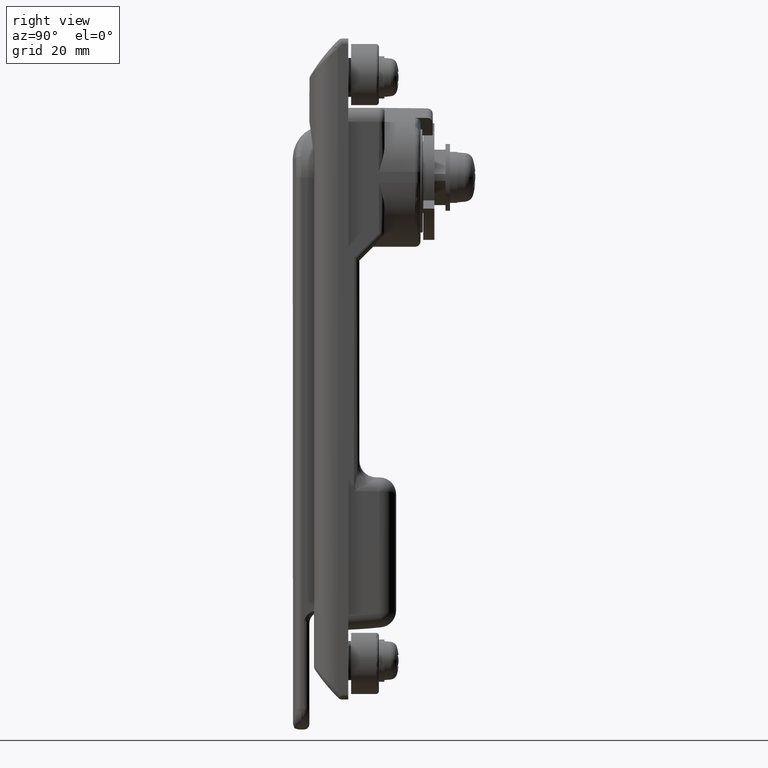
[diagram: clean part render]
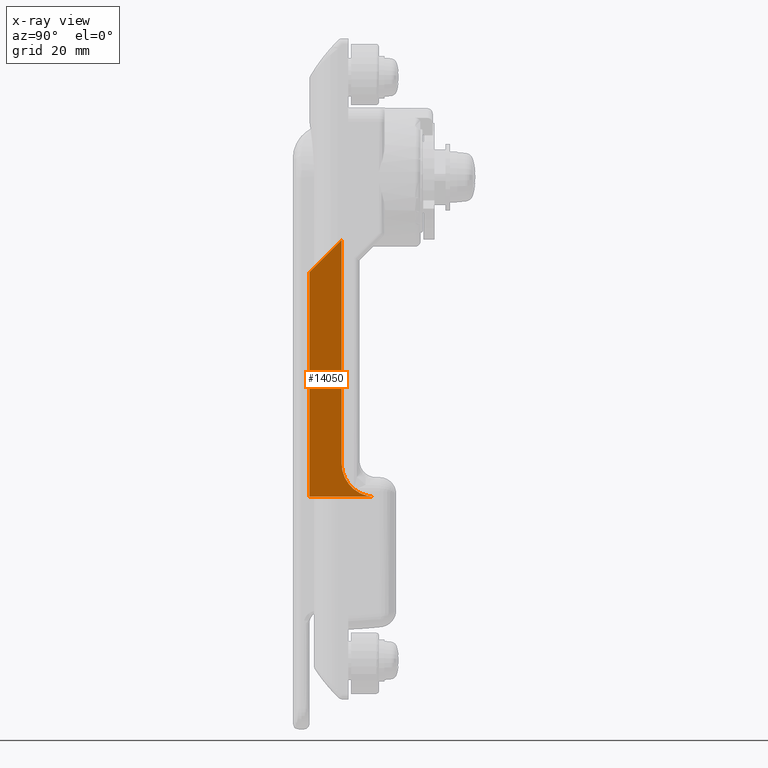
[diagram: x-ray — body ghosted, one internal face saturated and labeled with its STEP entity id]
A machine part, right view, then the same camera in x-ray: the body is ghosted and one INTERNAL B-rep face — a face not visible from any outside direction — is saturated and labeled: STEP entity #14050.
In plain terms, the highlighted planar face has unit normal (1, 0, 0).
Its self-contained STEP definition (entity closure, byte-faithful):
#13400 = VERTEX_POINT ( 'NONE', #21474 ) ;
#13409 = EDGE_CURVE ( 'NONE', #13410, #13400, #21463, .T. ) ;
#13410 = VERTEX_POINT ( 'NONE', #21459 ) ;
#13623 = EDGE_CURVE ( 'NONE', #13624, #13625, #22897, .T. ) ;
#13624 = VERTEX_POINT ( 'NONE', #22893 ) ;
#13625 = VERTEX_POINT ( 'NONE', #22853 ) ;
#13994 = EDGE_CURVE ( 'NONE', #13410, #13625, #15881, .T. ) ;
#14050 = ADVANCED_FACE ( 'NONE', ( #15962 ), #15961, .T. ) ;
#14051 = EDGE_LOOP ( 'NONE', ( #14052, #14053, #14054, #14055, #14056, #14057 ) ) ;
#14052 = ORIENTED_EDGE ( 'NONE', *, *, #14196, .T. ) ;
#14053 = ORIENTED_EDGE ( 'NONE', *, *, #13623, .T. ) ;
#14054 = ORIENTED_EDGE ( 'NONE', *, *, #13994, .F. ) ;
#14055 = ORIENTED_EDGE ( 'NONE', *, *, #13409, .T. ) ;
#14056 = ORIENTED_EDGE ( 'NONE', *, *, #14171, .T. ) ;
#14057 = ORIENTED_EDGE ( 'NONE', *, *, #14190, .F. ) ;
#14072 = VERTEX_POINT ( 'NONE', #15821 ) ;
#14171 = EDGE_CURVE ( 'NONE', #13400, #14172, #16131, .T. ) ;
#14172 = VERTEX_POINT ( 'NONE', #16126 ) ;
#14190 = EDGE_CURVE ( 'NONE', #14072, #14172, #16360, .T. ) ;
#14196 = EDGE_CURVE ( 'NONE', #14072, #13624, #16192, .T. ) ;
#15821 = CARTESIAN_POINT ( 'NONE',  ( -18.69999999999940200, -1.499999999999946000, -51.50250039075159900 ) ) ;
#15878 = DIRECTION ( 'NONE',  ( -2.575914405706345100E-016, 0.0000000000000000000, 1.000000000000000000 ) ) ;
#15879 = VECTOR ( 'NONE', #15878, 1000.000000000000000 ) ;
#15880 = CARTESIAN_POINT ( 'NONE',  ( -24.49999999999949900, -1.499999999999946000, -17.09360748632634900 ) ) ;
#15881 = LINE ( 'NONE', #15880, #15879 ) ;
#15943 = DIRECTION ( 'NONE',  ( 1.000000000000000000, 0.0000000000000000000, 0.0000000000000000000 ) ) ;
#15944 = DIRECTION ( 'NONE',  ( 0.0000000000000000000, -1.000000000000000000, 0.0000000000000000000 ) ) ;
#15945 = CARTESIAN_POINT ( 'NONE',  ( 0.0000000000000000000, -1.500000000000000000, 0.0000000000000000000 ) ) ;
#15946 = AXIS2_PLACEMENT_3D ( 'NONE', #15945, #15944, #15943 ) ;
#15961 = PLANE ( 'NONE',  #15946 ) ;
#15962 = FACE_OUTER_BOUND ( 'NONE', #14051, .T. ) ;
#16126 = CARTESIAN_POINT ( 'NONE',  ( -12.87320056873760000, -1.499999999999946000, -57.50000000000450500 ) ) ;
#16128 = DIRECTION ( 'NONE',  ( 1.000000000000000000, 0.0000000000000000000, 0.0000000000000000000 ) ) ;
#16129 = VECTOR ( 'NONE', #16128, 1000.000000000000000 ) ;
#16130 = CARTESIAN_POINT ( 'NONE',  ( -25.49999999999949900, -1.499999999999946000, -57.50000000000450500 ) ) ;
#16131 = LINE ( 'NONE', #16130, #16129 ) ;
#16189 = DIRECTION ( 'NONE',  ( -9.168925558673558500E-016, 0.0000000000000000000, 1.000000000000000000 ) ) ;
#16190 = VECTOR ( 'NONE', #16189, 1000.000000000000000 ) ;
#16191 = CARTESIAN_POINT ( 'NONE',  ( -18.69999999999940200, -1.499999999999946000, -51.50250039075149300 ) ) ;
#16192 = LINE ( 'NONE', #16191, #16190 ) ;
#16356 = DIRECTION ( 'NONE',  ( 0.0000000000000000000, 0.0000000000000000000, -1.000000000000000000 ) ) ;
#16357 = DIRECTION ( 'NONE',  ( 0.0000000000000000000, -1.000000000000000000, 0.0000000000000000000 ) ) ;
#16358 = CARTESIAN_POINT ( 'NONE',  ( -12.69999999999940100, -1.499999999999946000, -51.50250039075159900 ) ) ;
#16359 = AXIS2_PLACEMENT_3D ( 'NONE', #16358, #16357, #16356 ) ;
#16360 = CIRCLE ( 'NONE', #16359, 5.999999999999998200 ) ;
#21459 = CARTESIAN_POINT ( 'NONE',  ( -24.49999999999949900, -1.499999999999946000, -57.50000000000450500 ) ) ;
#21460 = DIRECTION ( 'NONE',  ( 1.000000000000000000, 0.0000000000000000000, 0.0000000000000000000 ) ) ;
#21461 = VECTOR ( 'NONE', #21460, 1000.000000000000000 ) ;
#21462 = CARTESIAN_POINT ( 'NONE',  ( -25.49999999999949900, -1.499999999999946000, -57.50000000000450500 ) ) ;
#21463 = LINE ( 'NONE', #21462, #21461 ) ;
#21474 = CARTESIAN_POINT ( 'NONE',  ( -12.89999999999910000, -1.499999999999946000, -57.50000000000450500 ) ) ;
#22853 = CARTESIAN_POINT ( 'NONE',  ( -24.49999999999949900, -1.499999999999946000, -17.09360748632634900 ) ) ;
#22893 = CARTESIAN_POINT ( 'NONE',  ( -18.69999999999944900, -1.499999999999946000, -11.29360748631852100 ) ) ;
#22894 = DIRECTION ( 'NONE',  ( -0.7071067811860741700, 0.0000000000000000000, -0.7071067811870209700 ) ) ;
#22895 = VECTOR ( 'NONE', #22894, 999.9999999999998900 ) ;
#22896 = CARTESIAN_POINT ( 'NONE',  ( -19.69999999999960100, -1.499999999999946000, -12.29360748631999900 ) ) ;
#22897 = LINE ( 'NONE', #22896, #22895 ) ;